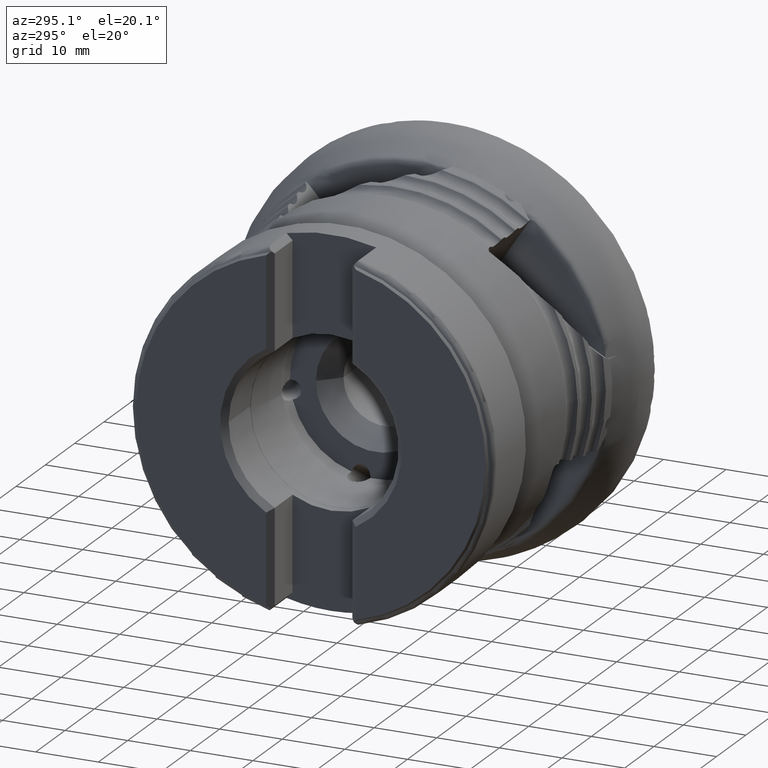
[diagram: clean part render]
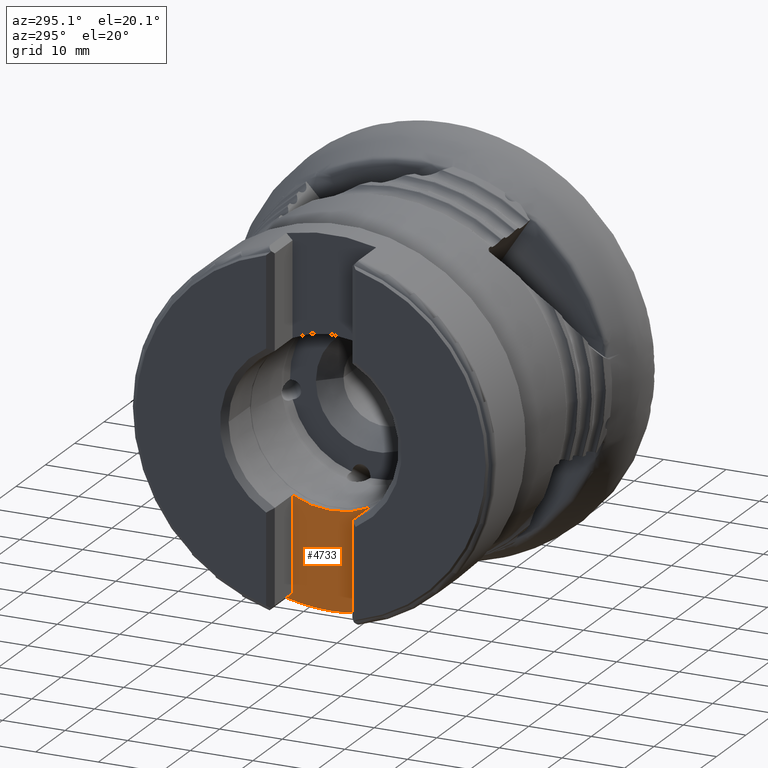
[diagram: same view with one face highlighted and labeled with its STEP entity id]
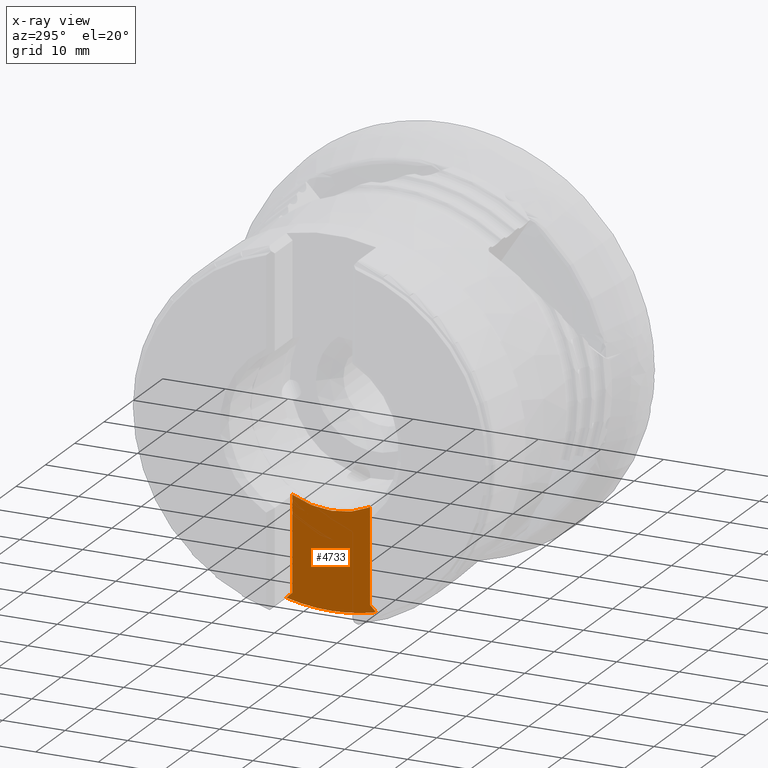
[diagram: x-ray of the same camera — body ghosted, the highlighted face saturated]
A machine part, auxiliary view. The second image highlights one B-rep face of the part: STEP entity #4733.
The next image is the same camera in x-ray: the body ghosted, the highlighted face saturated — about 0% of this face is hidden behind the body in this view.
In plain terms, the highlighted planar face has unit normal (1, 0, 0).
Its self-contained STEP definition (entity closure, byte-faithful):
#21 = VECTOR ( 'NONE', #2780, 1000.000000000000000 ) ;
#95 = EDGE_CURVE ( 'NONE', #9346, #10868, #5301, .T. ) ;
#849 = ORIENTED_EDGE ( 'NONE', *, *, #3093, .T. ) ;
#868 = VERTEX_POINT ( 'NONE', #13389 ) ;
#916 = VERTEX_POINT ( 'NONE', #9058 ) ;
#1020 = CARTESIAN_POINT ( 'NONE',  ( -41.90525917703946100, 0.0000000000000000000, 0.0000000000000000000 ) ) ;
#1336 = AXIS2_PLACEMENT_3D ( 'NONE', #1020, #8713, #2139 ) ;
#1909 = CARTESIAN_POINT ( 'NONE',  ( -41.90525917703946100, 6.199999999999994000, -27.11621402010955600 ) ) ;
#2052 = VECTOR ( 'NONE', #4620, 999.9999999999998900 ) ;
#2139 = DIRECTION ( 'NONE',  ( 0.0000000000000000000, 0.0000000000000000000, -1.000000000000000000 ) ) ;
#2352 = FACE_OUTER_BOUND ( 'NONE', #12583, .T. ) ;
#2385 = AXIS2_PLACEMENT_3D ( 'NONE', #10972, #5481, #13174 ) ;
#2426 = LINE ( 'NONE', #10231, #10846 ) ;
#2462 = CARTESIAN_POINT ( 'NONE',  ( -41.90525917703946100, -6.200000000000003700, -12.07644918839970500 ) ) ;
#2780 = DIRECTION ( 'NONE',  ( -0.0000000000000000000, -0.0000000000000000000, 1.000000000000000000 ) ) ;
#3093 = EDGE_CURVE ( 'NONE', #11584, #916, #12160, .T. ) ;
#3194 = VECTOR ( 'NONE', #11324, 1000.000000000000100 ) ;
#3664 = ORIENTED_EDGE ( 'NONE', *, *, #9863, .T. ) ;
#4620 = DIRECTION ( 'NONE',  ( -0.0000000000000000000, 0.6989738158220563100, -0.7151472609156481800 ) ) ;
#4723 = ORIENTED_EDGE ( 'NONE', *, *, #11909, .T. ) ;
#4733 = ADVANCED_FACE ( 'NONE', ( #2352 ), #7622, .F. ) ;
#5301 = CIRCLE ( 'NONE', #9692, 13.57499999999999400 ) ;
#5481 = DIRECTION ( 'NONE',  ( 1.000000000000000000, 0.0000000000000000000, 0.0000000000000000000 ) ) ;
#5838 = CARTESIAN_POINT ( 'NONE',  ( -41.90525917703946100, -4.082663367751010200, -24.94988466883282600 ) ) ;
#5921 = CARTESIAN_POINT ( 'NONE',  ( -41.90525917703946100, 7.162962588931239200, -28.10145844879891200 ) ) ;
#6024 = CARTESIAN_POINT ( 'NONE',  ( -41.90525917703946100, 1.061812903570615900E-017, 0.0000000000000000000 ) ) ;
#6717 = ORIENTED_EDGE ( 'NONE', *, *, #13219, .T. ) ;
#7114 = DIRECTION ( 'NONE',  ( 0.0000000000000000000, 0.0000000000000000000, -1.000000000000000000 ) ) ;
#7450 = VERTEX_POINT ( 'NONE', #1909 ) ;
#7622 = PLANE ( 'NONE',  #2385 ) ;
#7744 = ORIENTED_EDGE ( 'NONE', *, *, #9507, .F. ) ;
#8242 = CARTESIAN_POINT ( 'NONE',  ( -41.90525917703946100, 6.199999999999994000, -35.00000000000000000 ) ) ;
#8689 = LINE ( 'NONE', #5838, #3194 ) ;
#8713 = DIRECTION ( 'NONE',  ( -1.000000000000000000, -0.0000000000000000000, -0.0000000000000000000 ) ) ;
#9058 = CARTESIAN_POINT ( 'NONE',  ( -41.90525917703946100, -7.162962588931217800, -28.10145844879891900 ) ) ;
#9346 = VERTEX_POINT ( 'NONE', #12372 ) ;
#9507 = EDGE_CURVE ( 'NONE', #7450, #9346, #12565, .T. ) ;
#9692 = AXIS2_PLACEMENT_3D ( 'NONE', #6024, #13736, #7114 ) ;
#9863 = EDGE_CURVE ( 'NONE', #868, #10868, #2426, .T. ) ;
#10231 = CARTESIAN_POINT ( 'NONE',  ( -41.90525917703946100, -6.200000000000003700, -35.00000000000000000 ) ) ;
#10455 = ORIENTED_EDGE ( 'NONE', *, *, #95, .F. ) ;
#10827 = LINE ( 'NONE', #12328, #2052 ) ;
#10846 = VECTOR ( 'NONE', #11340, 1000.000000000000000 ) ;
#10868 = VERTEX_POINT ( 'NONE', #2462 ) ;
#10972 = CARTESIAN_POINT ( 'NONE',  ( -41.90525917703946100, 6.199999999999994000, -35.00000000000000000 ) ) ;
#11324 = DIRECTION ( 'NONE',  ( -0.0000000000000000000, 0.6989738158220548700, 0.7151472609156495100 ) ) ;
#11340 = DIRECTION ( 'NONE',  ( -0.0000000000000000000, -0.0000000000000000000, 1.000000000000000000 ) ) ;
#11584 = VERTEX_POINT ( 'NONE', #5921 ) ;
#11909 = EDGE_CURVE ( 'Kante49', #7450, #11584, #10827, .T. ) ;
#12160 = CIRCLE ( 'NONE', #1336, 29.00000000000000400 ) ;
#12328 = CARTESIAN_POINT ( 'NONE',  ( -41.90525917703946100, 10.14086186829107900, -31.14826287081038500 ) ) ;
#12372 = CARTESIAN_POINT ( 'NONE',  ( -41.90525917703946100, 6.199999999999994000, -12.07644918839970500 ) ) ;
#12565 = LINE ( 'NONE', #8242, #21 ) ;
#12583 = EDGE_LOOP ( 'NONE', ( #849, #6717, #3664, #10455, #7744, #4723 ) ) ;
#13174 = DIRECTION ( 'NONE',  ( 0.0000000000000000000, 0.0000000000000000000, -1.000000000000000000 ) ) ;
#13219 = EDGE_CURVE ( 'NONE', #916, #868, #8689, .T. ) ;
#13389 = CARTESIAN_POINT ( 'NONE',  ( -41.90525917703946100, -6.200000000000003700, -27.11621402010959200 ) ) ;
#13736 = DIRECTION ( 'NONE',  ( -1.000000000000000000, -0.0000000000000000000, -0.0000000000000000000 ) ) ;